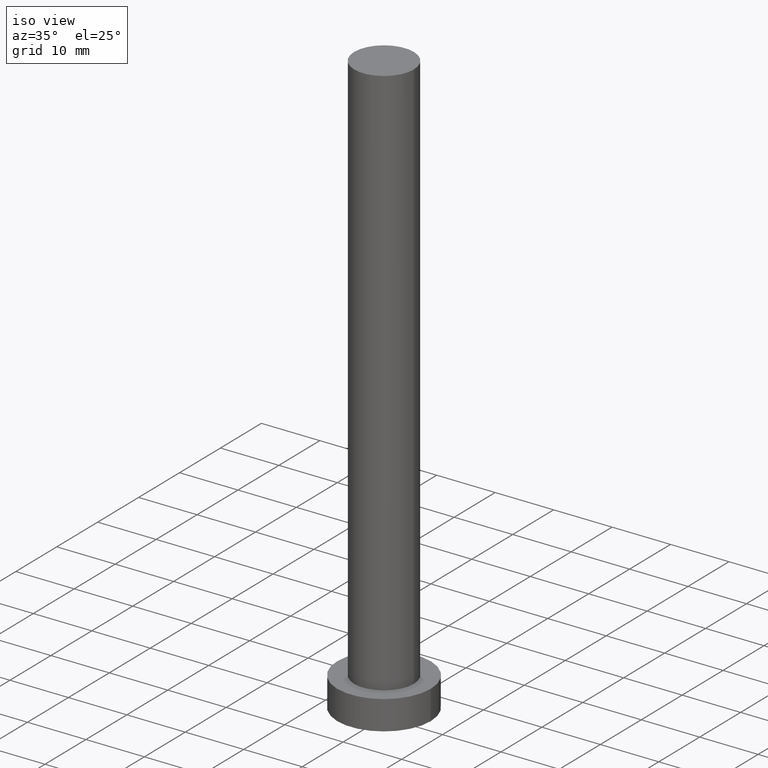
[diagram: clean part render]
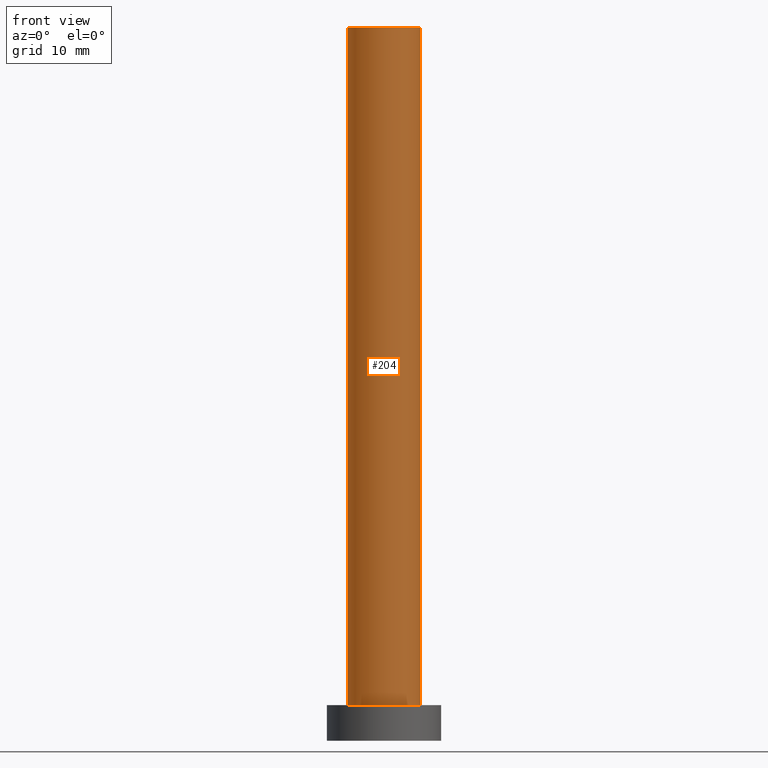
[diagram: tour spotlight — one face highlighted and labeled with its STEP entity id]
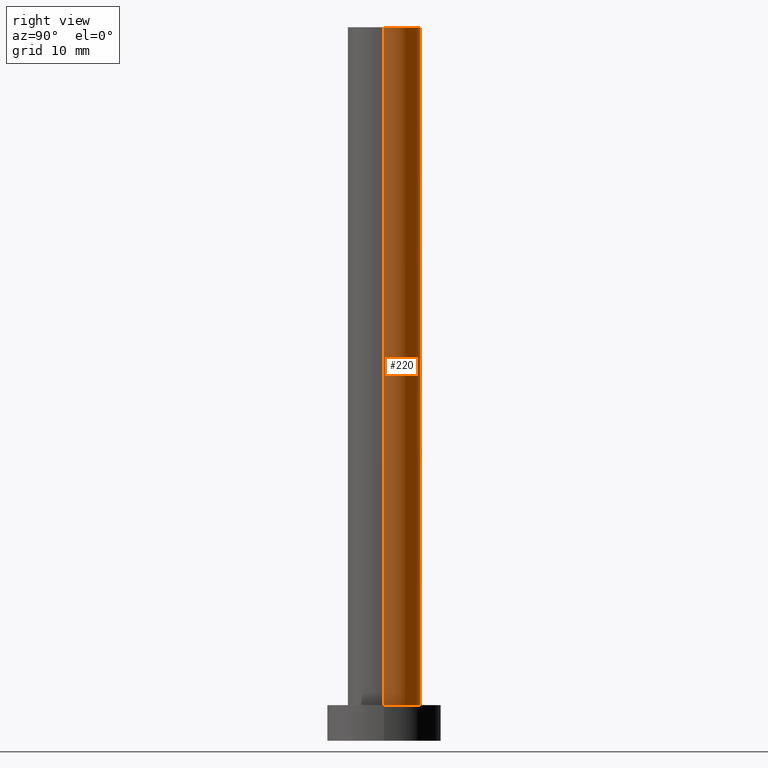
[diagram: tour spotlight — one face highlighted and labeled with its STEP entity id]
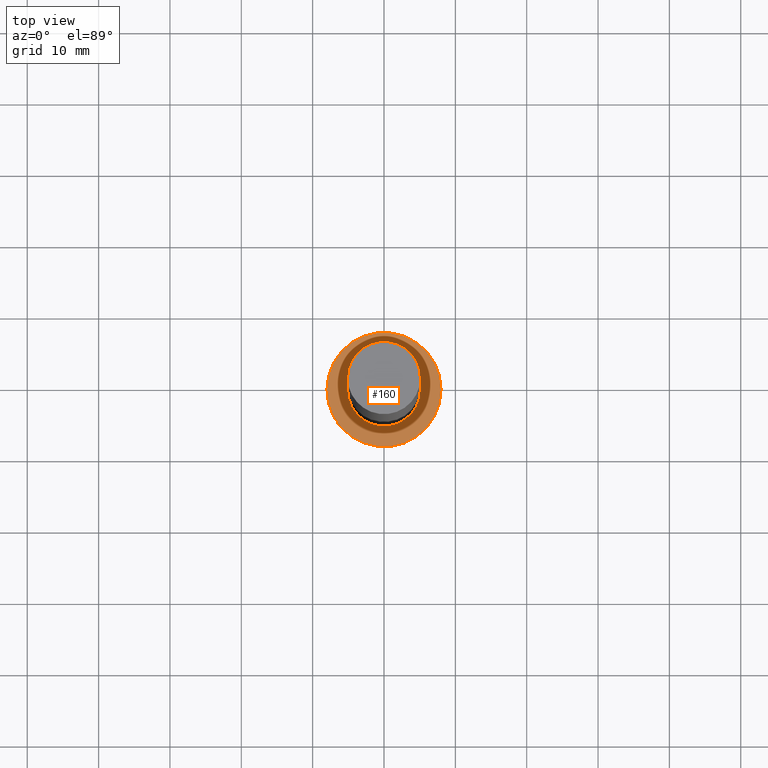
[diagram: tour spotlight — one face highlighted and labeled with its STEP entity id]
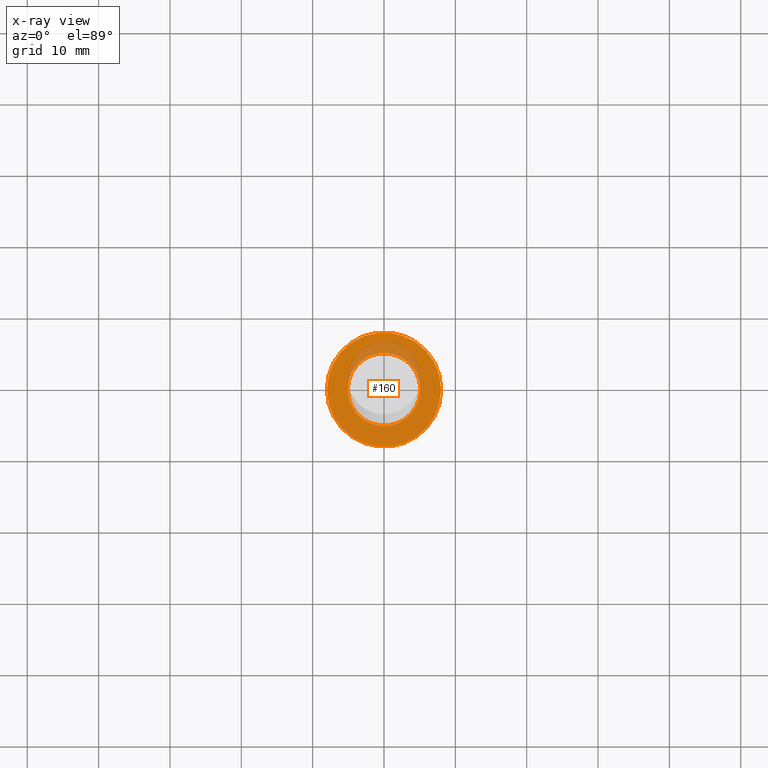
[diagram: x-ray of the same camera — body ghosted, this tour face saturated]
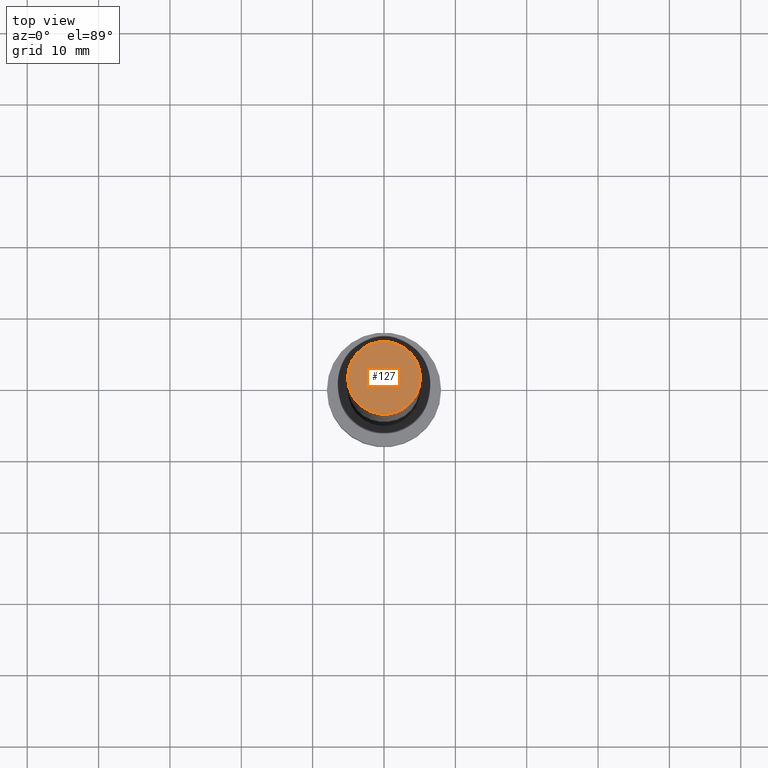
[diagram: tour spotlight — one face highlighted and labeled with its STEP entity id]
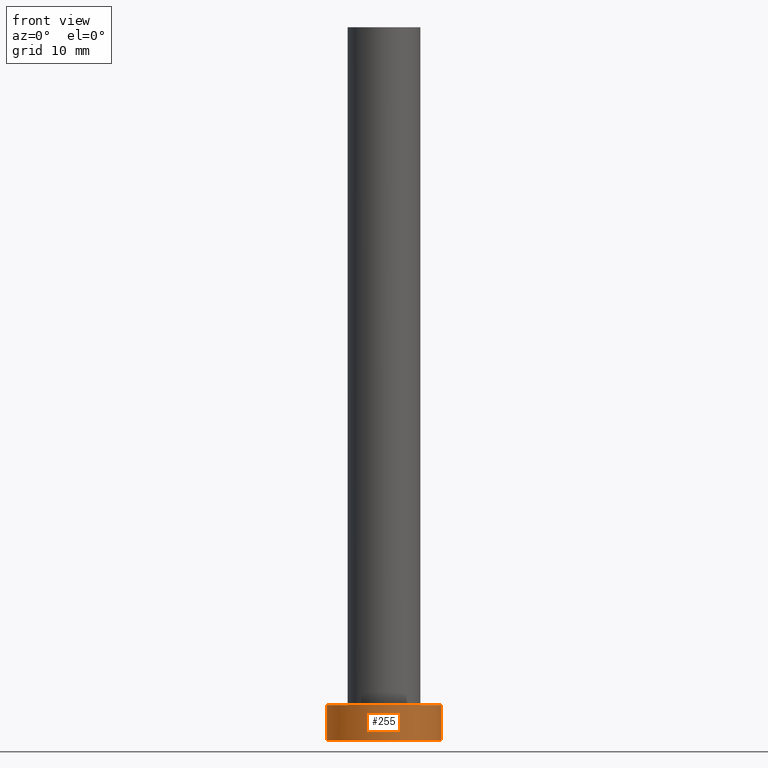
[diagram: tour spotlight — one face highlighted and labeled with its STEP entity id]
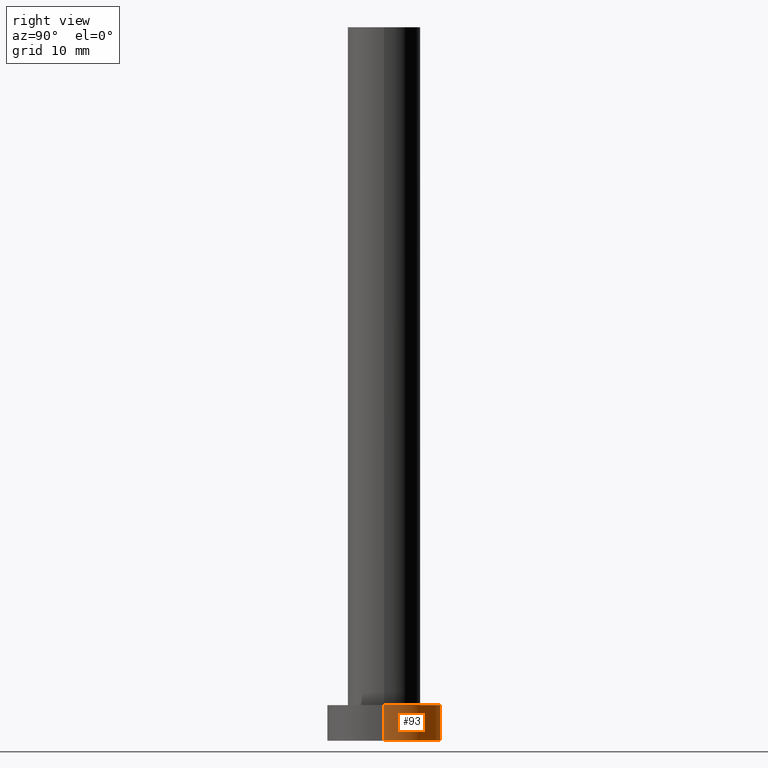
[diagram: tour spotlight — one face highlighted and labeled with its STEP entity id]
A machine part: a face-by-face anatomy tour. The part has 7 B-rep faces; the first image is the clean iso view, then the 6 largest visible faces are spotlighted one at a time (largest first), each with its STEP entity span.

Face 1 — front view, entity #204. In plain terms, the highlighted cylindrical surface (edge-blend (fillet) strip) has radius 5.1 mm, axis along (-0, -0, -1).
Definition (entity closure, byte-faithful):
#9 = DIRECTION ( 'NONE',  ( 0.000000000000000000, 0.000000000000000000, 1.000000000000000000 ) ) ;
#16 = LINE ( 'NONE', #183, #117 ) ;
#19 = CARTESIAN_POINT ( 'NONE',  ( 0.000000000000000000, 0.000000000000000000, 100.0000000000000000 ) ) ;
#26 = EDGE_CURVE ( 'NONE', #215, #99, #16, .T. ) ;
#41 = CYLINDRICAL_SURFACE ( 'NONE', #170, 5.100000000000001421 ) ;
#43 = DIRECTION ( 'NONE',  ( -1.000000000000000000, 0.000000000000000000, 0.000000000000000000 ) ) ;
#48 = EDGE_CURVE ( 'NONE', #215, #217, #191, .T. ) ;
#56 = ORIENTED_EDGE ( 'NONE', *, *, #26, .T. ) ;
#70 = EDGE_CURVE ( 'NONE', #217, #218, #225, .T. ) ;
#85 = DIRECTION ( 'NONE',  ( 1.000000000000000000, 0.000000000000000000, 0.000000000000000000 ) ) ;
#87 = CARTESIAN_POINT ( 'NONE',  ( -5.100000000000001421, 0.000000000000000000, 100.0000000000000000 ) ) ;
#90 = DIRECTION ( 'NONE',  ( 0.000000000000000000, 0.000000000000000000, 1.000000000000000000 ) ) ;
#97 = CARTESIAN_POINT ( 'NONE',  ( -5.100000000000001421, 0.000000000000000000, 5.000000000000000000 ) ) ;
#99 = VERTEX_POINT ( 'NONE', #97 ) ;
#102 = EDGE_LOOP ( 'NONE', ( #224, #141, #56, #244 ) ) ;
#107 = AXIS2_PLACEMENT_3D ( 'NONE', #137, #9, #116 ) ;
#114 = VECTOR ( 'NONE', #192, 1000.000000000000000 ) ;
#116 = DIRECTION ( 'NONE',  ( 1.000000000000000000, 0.000000000000000000, 0.000000000000000000 ) ) ;
#117 = VECTOR ( 'NONE', #250, 1000.000000000000000 ) ;
#128 = FACE_OUTER_BOUND ( 'NONE', #102, .T. ) ;
#131 = AXIS2_PLACEMENT_3D ( 'NONE', #237, #90, #85 ) ;
#137 = CARTESIAN_POINT ( 'NONE',  ( 0.000000000000000000, 0.000000000000000000, 100.0000000000000000 ) ) ;
#141 = ORIENTED_EDGE ( 'NONE', *, *, #48, .F. ) ;
#151 = CARTESIAN_POINT ( 'NONE',  ( 5.100000000000001421, 6.245698675651502811E-16, 5.000000000000000000 ) ) ;
#168 = CARTESIAN_POINT ( 'NONE',  ( 5.100000000000001421, 6.245698675651502811E-16, 100.0000000000000000 ) ) ;
#170 = AXIS2_PLACEMENT_3D ( 'NONE', #19, #221, #43 ) ;
#183 = CARTESIAN_POINT ( 'NONE',  ( -5.100000000000001421, 0.000000000000000000, 100.0000000000000000 ) ) ;
#187 = EDGE_CURVE ( 'NONE', #99, #218, #253, .T. ) ;
#191 = CIRCLE ( 'NONE', #107, 5.100000000000001421 ) ;
#192 = DIRECTION ( 'NONE',  ( -0.000000000000000000, -0.000000000000000000, -1.000000000000000000 ) ) ;
#204 = ADVANCED_FACE ( 'NONE', ( #128 ), #41, .T. ) ;
#210 = CARTESIAN_POINT ( 'NONE',  ( 5.100000000000001421, 6.245698675651502811E-16, 100.0000000000000000 ) ) ;
#215 = VERTEX_POINT ( 'NONE', #87 ) ;
#217 = VERTEX_POINT ( 'NONE', #168 ) ;
#218 = VERTEX_POINT ( 'NONE', #151 ) ;
#221 = DIRECTION ( 'NONE',  ( -0.000000000000000000, -0.000000000000000000, -1.000000000000000000 ) ) ;
#224 = ORIENTED_EDGE ( 'NONE', *, *, #70, .F. ) ;
#225 = LINE ( 'NONE', #210, #114 ) ;
#237 = CARTESIAN_POINT ( 'NONE',  ( 0.000000000000000000, 0.000000000000000000, 5.000000000000000000 ) ) ;
#244 = ORIENTED_EDGE ( 'NONE', *, *, #187, .T. ) ;
#250 = DIRECTION ( 'NONE',  ( -0.000000000000000000, -0.000000000000000000, -1.000000000000000000 ) ) ;
#253 = CIRCLE ( 'NONE', #131, 5.100000000000001421 ) ;

Face 2 — right view, entity #220. In plain terms, the highlighted cylindrical surface (edge-blend (fillet) strip) has radius 5.1 mm, axis along (-0, -0, -1).
Definition (entity closure, byte-faithful):
#1 = DIRECTION ( 'NONE',  ( 1.000000000000000000, 0.000000000000000000, 0.000000000000000000 ) ) ;
#2 = DIRECTION ( 'NONE',  ( -0.000000000000000000, -0.000000000000000000, -1.000000000000000000 ) ) ;
#13 = AXIS2_PLACEMENT_3D ( 'NONE', #22, #65, #1 ) ;
#16 = LINE ( 'NONE', #183, #117 ) ;
#22 = CARTESIAN_POINT ( 'NONE',  ( 0.000000000000000000, 0.000000000000000000, 5.000000000000000000 ) ) ;
#23 = CYLINDRICAL_SURFACE ( 'NONE', #29, 5.100000000000001421 ) ;
#25 = DIRECTION ( 'NONE',  ( -1.000000000000000000, 0.000000000000000000, 0.000000000000000000 ) ) ;
#26 = EDGE_CURVE ( 'NONE', #215, #99, #16, .T. ) ;
#27 = EDGE_CURVE ( 'NONE', #217, #215, #63, .T. ) ;
#29 = AXIS2_PLACEMENT_3D ( 'NONE', #111, #2, #25 ) ;
#30 = ORIENTED_EDGE ( 'NONE', *, *, #26, .F. ) ;
#37 = ORIENTED_EDGE ( 'NONE', *, *, #213, .T. ) ;
#51 = DIRECTION ( 'NONE',  ( 1.000000000000000000, 0.000000000000000000, 0.000000000000000000 ) ) ;
#63 = CIRCLE ( 'NONE', #206, 5.100000000000001421 ) ;
#65 = DIRECTION ( 'NONE',  ( 0.000000000000000000, 0.000000000000000000, 1.000000000000000000 ) ) ;
#70 = EDGE_CURVE ( 'NONE', #217, #218, #225, .T. ) ;
#83 = ORIENTED_EDGE ( 'NONE', *, *, #27, .F. ) ;
#87 = CARTESIAN_POINT ( 'NONE',  ( -5.100000000000001421, 0.000000000000000000, 100.0000000000000000 ) ) ;
#97 = CARTESIAN_POINT ( 'NONE',  ( -5.100000000000001421, 0.000000000000000000, 5.000000000000000000 ) ) ;
#99 = VERTEX_POINT ( 'NONE', #97 ) ;
#111 = CARTESIAN_POINT ( 'NONE',  ( 0.000000000000000000, 0.000000000000000000, 100.0000000000000000 ) ) ;
#114 = VECTOR ( 'NONE', #192, 1000.000000000000000 ) ;
#117 = VECTOR ( 'NONE', #250, 1000.000000000000000 ) ;
#150 = CIRCLE ( 'NONE', #13, 5.100000000000001421 ) ;
#151 = CARTESIAN_POINT ( 'NONE',  ( 5.100000000000001421, 6.245698675651502811E-16, 5.000000000000000000 ) ) ;
#162 = ORIENTED_EDGE ( 'NONE', *, *, #70, .T. ) ;
#163 = CARTESIAN_POINT ( 'NONE',  ( 0.000000000000000000, 0.000000000000000000, 100.0000000000000000 ) ) ;
#168 = CARTESIAN_POINT ( 'NONE',  ( 5.100000000000001421, 6.245698675651502811E-16, 100.0000000000000000 ) ) ;
#183 = CARTESIAN_POINT ( 'NONE',  ( -5.100000000000001421, 0.000000000000000000, 100.0000000000000000 ) ) ;
#192 = DIRECTION ( 'NONE',  ( -0.000000000000000000, -0.000000000000000000, -1.000000000000000000 ) ) ;
#205 = FACE_OUTER_BOUND ( 'NONE', #231, .T. ) ;
#206 = AXIS2_PLACEMENT_3D ( 'NONE', #163, #233, #51 ) ;
#210 = CARTESIAN_POINT ( 'NONE',  ( 5.100000000000001421, 6.245698675651502811E-16, 100.0000000000000000 ) ) ;
#213 = EDGE_CURVE ( 'NONE', #218, #99, #150, .T. ) ;
#215 = VERTEX_POINT ( 'NONE', #87 ) ;
#217 = VERTEX_POINT ( 'NONE', #168 ) ;
#218 = VERTEX_POINT ( 'NONE', #151 ) ;
#220 = ADVANCED_FACE ( 'NONE', ( #205 ), #23, .T. ) ;
#225 = LINE ( 'NONE', #210, #114 ) ;
#231 = EDGE_LOOP ( 'NONE', ( #83, #162, #37, #30 ) ) ;
#233 = DIRECTION ( 'NONE',  ( 0.000000000000000000, 0.000000000000000000, 1.000000000000000000 ) ) ;
#250 = DIRECTION ( 'NONE',  ( -0.000000000000000000, -0.000000000000000000, -1.000000000000000000 ) ) ;

Face 3 — top view, entity #160. An x-ray twin of the same camera follows (body ghosted, this face saturated) — the face is partly hidden behind the body. In plain terms, the highlighted planar face has unit normal (0, 0, 1).
Definition (entity closure, byte-faithful):
#1 = DIRECTION ( 'NONE',  ( 1.000000000000000000, 0.000000000000000000, 0.000000000000000000 ) ) ;
#11 = ORIENTED_EDGE ( 'NONE', *, *, #139, .T. ) ;
#12 = FACE_OUTER_BOUND ( 'NONE', #212, .T. ) ;
#13 = AXIS2_PLACEMENT_3D ( 'NONE', #22, #65, #1 ) ;
#22 = CARTESIAN_POINT ( 'NONE',  ( 0.000000000000000000, 0.000000000000000000, 5.000000000000000000 ) ) ;
#32 = EDGE_LOOP ( 'NONE', ( #185, #144 ) ) ;
#33 = DIRECTION ( 'NONE',  ( 0.000000000000000000, 0.000000000000000000, 1.000000000000000000 ) ) ;
#53 = EDGE_CURVE ( 'NONE', #178, #76, #79, .T. ) ;
#65 = DIRECTION ( 'NONE',  ( 0.000000000000000000, 0.000000000000000000, 1.000000000000000000 ) ) ;
#76 = VERTEX_POINT ( 'NONE', #172 ) ;
#77 = DIRECTION ( 'NONE',  ( 0.000000000000000000, 0.000000000000000000, 1.000000000000000000 ) ) ;
#79 = CIRCLE ( 'NONE', #91, 8.000000000000000000 ) ;
#84 = CARTESIAN_POINT ( 'NONE',  ( 0.000000000000000000, 0.000000000000000000, 5.000000000000000000 ) ) ;
#85 = DIRECTION ( 'NONE',  ( 1.000000000000000000, 0.000000000000000000, 0.000000000000000000 ) ) ;
#90 = DIRECTION ( 'NONE',  ( 0.000000000000000000, 0.000000000000000000, 1.000000000000000000 ) ) ;
#91 = AXIS2_PLACEMENT_3D ( 'NONE', #100, #95, #155 ) ;
#95 = DIRECTION ( 'NONE',  ( 0.000000000000000000, 0.000000000000000000, 1.000000000000000000 ) ) ;
#97 = CARTESIAN_POINT ( 'NONE',  ( -5.100000000000001421, 0.000000000000000000, 5.000000000000000000 ) ) ;
#99 = VERTEX_POINT ( 'NONE', #97 ) ;
#100 = CARTESIAN_POINT ( 'NONE',  ( 0.000000000000000000, 0.000000000000000000, 5.000000000000000000 ) ) ;
#103 = PLANE ( 'NONE',  #232 ) ;
#108 = ORIENTED_EDGE ( 'NONE', *, *, #53, .T. ) ;
#110 = FACE_BOUND ( 'NONE', #32, .T. ) ;
#131 = AXIS2_PLACEMENT_3D ( 'NONE', #237, #90, #85 ) ;
#139 = EDGE_CURVE ( 'NONE', #76, #178, #156, .T. ) ;
#144 = ORIENTED_EDGE ( 'NONE', *, *, #213, .F. ) ;
#148 = DIRECTION ( 'NONE',  ( 1.000000000000000000, 0.000000000000000000, -0.000000000000000000 ) ) ;
#150 = CIRCLE ( 'NONE', #13, 5.100000000000001421 ) ;
#151 = CARTESIAN_POINT ( 'NONE',  ( 5.100000000000001421, 6.245698675651502811E-16, 5.000000000000000000 ) ) ;
#155 = DIRECTION ( 'NONE',  ( 1.000000000000000000, 0.000000000000000000, 0.000000000000000000 ) ) ;
#156 = CIRCLE ( 'NONE', #245, 8.000000000000000000 ) ;
#160 = ADVANCED_FACE ( 'NONE', ( #110, #12 ), #103, .T. ) ;
#172 = CARTESIAN_POINT ( 'NONE',  ( 8.000000000000000000, 9.797174393178825657E-16, 5.000000000000000000 ) ) ;
#178 = VERTEX_POINT ( 'NONE', #203 ) ;
#185 = ORIENTED_EDGE ( 'NONE', *, *, #187, .F. ) ;
#187 = EDGE_CURVE ( 'NONE', #99, #218, #253, .T. ) ;
#203 = CARTESIAN_POINT ( 'NONE',  ( -8.000000000000000000, 0.000000000000000000, 5.000000000000000000 ) ) ;
#212 = EDGE_LOOP ( 'NONE', ( #108, #11 ) ) ;
#213 = EDGE_CURVE ( 'NONE', #218, #99, #150, .T. ) ;
#218 = VERTEX_POINT ( 'NONE', #151 ) ;
#232 = AXIS2_PLACEMENT_3D ( 'NONE', #236, #33, #148 ) ;
#236 = CARTESIAN_POINT ( 'NONE',  ( 0.000000000000000000, 0.000000000000000000, 5.000000000000000000 ) ) ;
#237 = CARTESIAN_POINT ( 'NONE',  ( 0.000000000000000000, 0.000000000000000000, 5.000000000000000000 ) ) ;
#245 = AXIS2_PLACEMENT_3D ( 'NONE', #84, #77, #251 ) ;
#251 = DIRECTION ( 'NONE',  ( 1.000000000000000000, 0.000000000000000000, 0.000000000000000000 ) ) ;
#253 = CIRCLE ( 'NONE', #131, 5.100000000000001421 ) ;

Face 4 — top view, entity #127. In plain terms, the highlighted planar face has unit normal (0, 0, 1).
Definition (entity closure, byte-faithful):
#3 = AXIS2_PLACEMENT_3D ( 'NONE', #49, #132, #120 ) ;
#9 = DIRECTION ( 'NONE',  ( 0.000000000000000000, 0.000000000000000000, 1.000000000000000000 ) ) ;
#15 = ORIENTED_EDGE ( 'NONE', *, *, #48, .T. ) ;
#27 = EDGE_CURVE ( 'NONE', #217, #215, #63, .T. ) ;
#28 = PLANE ( 'NONE',  #3 ) ;
#48 = EDGE_CURVE ( 'NONE', #215, #217, #191, .T. ) ;
#49 = CARTESIAN_POINT ( 'NONE',  ( 0.000000000000000000, 0.000000000000000000, 100.0000000000000000 ) ) ;
#51 = DIRECTION ( 'NONE',  ( 1.000000000000000000, 0.000000000000000000, 0.000000000000000000 ) ) ;
#63 = CIRCLE ( 'NONE', #206, 5.100000000000001421 ) ;
#87 = CARTESIAN_POINT ( 'NONE',  ( -5.100000000000001421, 0.000000000000000000, 100.0000000000000000 ) ) ;
#107 = AXIS2_PLACEMENT_3D ( 'NONE', #137, #9, #116 ) ;
#116 = DIRECTION ( 'NONE',  ( 1.000000000000000000, 0.000000000000000000, 0.000000000000000000 ) ) ;
#120 = DIRECTION ( 'NONE',  ( 1.000000000000000000, 0.000000000000000000, -0.000000000000000000 ) ) ;
#127 = ADVANCED_FACE ( 'NONE', ( #154 ), #28, .T. ) ;
#132 = DIRECTION ( 'NONE',  ( 0.000000000000000000, 0.000000000000000000, 1.000000000000000000 ) ) ;
#137 = CARTESIAN_POINT ( 'NONE',  ( 0.000000000000000000, 0.000000000000000000, 100.0000000000000000 ) ) ;
#154 = FACE_OUTER_BOUND ( 'NONE', #254, .T. ) ;
#159 = ORIENTED_EDGE ( 'NONE', *, *, #27, .T. ) ;
#163 = CARTESIAN_POINT ( 'NONE',  ( 0.000000000000000000, 0.000000000000000000, 100.0000000000000000 ) ) ;
#168 = CARTESIAN_POINT ( 'NONE',  ( 5.100000000000001421, 6.245698675651502811E-16, 100.0000000000000000 ) ) ;
#191 = CIRCLE ( 'NONE', #107, 5.100000000000001421 ) ;
#206 = AXIS2_PLACEMENT_3D ( 'NONE', #163, #233, #51 ) ;
#215 = VERTEX_POINT ( 'NONE', #87 ) ;
#217 = VERTEX_POINT ( 'NONE', #168 ) ;
#233 = DIRECTION ( 'NONE',  ( 0.000000000000000000, 0.000000000000000000, 1.000000000000000000 ) ) ;
#254 = EDGE_LOOP ( 'NONE', ( #15, #159 ) ) ;

Face 5 — front view, entity #255. In plain terms, the highlighted cylindrical surface (partial cylindrical patch) has radius 8 mm, axis along (-0, -0, -1).
Definition (entity closure, byte-faithful):
#4 = EDGE_CURVE ( 'NONE', #76, #124, #122, .T. ) ;
#34 = EDGE_CURVE ( 'NONE', #104, #124, #101, .T. ) ;
#44 = DIRECTION ( 'NONE',  ( -1.000000000000000000, 0.000000000000000000, 0.000000000000000000 ) ) ;
#47 = CARTESIAN_POINT ( 'NONE',  ( -8.000000000000000000, 0.000000000000000000, 5.000000000000000000 ) ) ;
#50 = LINE ( 'NONE', #47, #239 ) ;
#53 = EDGE_CURVE ( 'NONE', #178, #76, #79, .T. ) ;
#58 = ORIENTED_EDGE ( 'NONE', *, *, #53, .F. ) ;
#67 = CARTESIAN_POINT ( 'NONE',  ( 8.000000000000000000, 9.797174393178825657E-16, 0.000000000000000000 ) ) ;
#71 = DIRECTION ( 'NONE',  ( 0.000000000000000000, 0.000000000000000000, 1.000000000000000000 ) ) ;
#76 = VERTEX_POINT ( 'NONE', #172 ) ;
#79 = CIRCLE ( 'NONE', #91, 8.000000000000000000 ) ;
#86 = VECTOR ( 'NONE', #198, 1000.000000000000000 ) ;
#88 = CYLINDRICAL_SURFACE ( 'NONE', #126, 8.000000000000000000 ) ;
#91 = AXIS2_PLACEMENT_3D ( 'NONE', #100, #95, #155 ) ;
#95 = DIRECTION ( 'NONE',  ( 0.000000000000000000, 0.000000000000000000, 1.000000000000000000 ) ) ;
#100 = CARTESIAN_POINT ( 'NONE',  ( 0.000000000000000000, 0.000000000000000000, 5.000000000000000000 ) ) ;
#101 = CIRCLE ( 'NONE', #188, 8.000000000000000000 ) ;
#104 = VERTEX_POINT ( 'NONE', #152 ) ;
#109 = DIRECTION ( 'NONE',  ( -0.000000000000000000, -0.000000000000000000, -1.000000000000000000 ) ) ;
#112 = EDGE_CURVE ( 'NONE', #178, #104, #50, .T. ) ;
#115 = CARTESIAN_POINT ( 'NONE',  ( 0.000000000000000000, 0.000000000000000000, 0.000000000000000000 ) ) ;
#122 = LINE ( 'NONE', #228, #86 ) ;
#124 = VERTEX_POINT ( 'NONE', #67 ) ;
#126 = AXIS2_PLACEMENT_3D ( 'NONE', #149, #109, #44 ) ;
#129 = FACE_OUTER_BOUND ( 'NONE', #190, .T. ) ;
#149 = CARTESIAN_POINT ( 'NONE',  ( 0.000000000000000000, 0.000000000000000000, 5.000000000000000000 ) ) ;
#152 = CARTESIAN_POINT ( 'NONE',  ( -8.000000000000000000, 0.000000000000000000, 0.000000000000000000 ) ) ;
#155 = DIRECTION ( 'NONE',  ( 1.000000000000000000, 0.000000000000000000, 0.000000000000000000 ) ) ;
#165 = DIRECTION ( 'NONE',  ( 1.000000000000000000, 0.000000000000000000, 0.000000000000000000 ) ) ;
#172 = CARTESIAN_POINT ( 'NONE',  ( 8.000000000000000000, 9.797174393178825657E-16, 5.000000000000000000 ) ) ;
#178 = VERTEX_POINT ( 'NONE', #203 ) ;
#182 = ORIENTED_EDGE ( 'NONE', *, *, #112, .T. ) ;
#188 = AXIS2_PLACEMENT_3D ( 'NONE', #115, #71, #165 ) ;
#190 = EDGE_LOOP ( 'NONE', ( #208, #58, #182, #200 ) ) ;
#198 = DIRECTION ( 'NONE',  ( -0.000000000000000000, -0.000000000000000000, -1.000000000000000000 ) ) ;
#200 = ORIENTED_EDGE ( 'NONE', *, *, #34, .T. ) ;
#203 = CARTESIAN_POINT ( 'NONE',  ( -8.000000000000000000, 0.000000000000000000, 5.000000000000000000 ) ) ;
#208 = ORIENTED_EDGE ( 'NONE', *, *, #4, .F. ) ;
#228 = CARTESIAN_POINT ( 'NONE',  ( 8.000000000000000000, 9.797174393178825657E-16, 5.000000000000000000 ) ) ;
#239 = VECTOR ( 'NONE', #242, 1000.000000000000000 ) ;
#242 = DIRECTION ( 'NONE',  ( -0.000000000000000000, -0.000000000000000000, -1.000000000000000000 ) ) ;
#255 = ADVANCED_FACE ( 'NONE', ( #129 ), #88, .T. ) ;

Face 6 — right view, entity #93. In plain terms, the highlighted cylindrical surface (partial cylindrical patch) has radius 8 mm, axis along (-0, -0, -1).
Definition (entity closure, byte-faithful):
#4 = EDGE_CURVE ( 'NONE', #76, #124, #122, .T. ) ;
#5 = AXIS2_PLACEMENT_3D ( 'NONE', #81, #219, #125 ) ;
#18 = ORIENTED_EDGE ( 'NONE', *, *, #147, .T. ) ;
#39 = ORIENTED_EDGE ( 'NONE', *, *, #139, .F. ) ;
#47 = CARTESIAN_POINT ( 'NONE',  ( -8.000000000000000000, 0.000000000000000000, 5.000000000000000000 ) ) ;
#50 = LINE ( 'NONE', #47, #239 ) ;
#67 = CARTESIAN_POINT ( 'NONE',  ( 8.000000000000000000, 9.797174393178825657E-16, 0.000000000000000000 ) ) ;
#68 = CYLINDRICAL_SURFACE ( 'NONE', #135, 8.000000000000000000 ) ;
#74 = ORIENTED_EDGE ( 'NONE', *, *, #4, .T. ) ;
#76 = VERTEX_POINT ( 'NONE', #172 ) ;
#77 = DIRECTION ( 'NONE',  ( 0.000000000000000000, 0.000000000000000000, 1.000000000000000000 ) ) ;
#80 = ORIENTED_EDGE ( 'NONE', *, *, #112, .F. ) ;
#81 = CARTESIAN_POINT ( 'NONE',  ( 0.000000000000000000, 0.000000000000000000, 0.000000000000000000 ) ) ;
#84 = CARTESIAN_POINT ( 'NONE',  ( 0.000000000000000000, 0.000000000000000000, 5.000000000000000000 ) ) ;
#86 = VECTOR ( 'NONE', #198, 1000.000000000000000 ) ;
#93 = ADVANCED_FACE ( 'NONE', ( #175 ), #68, .T. ) ;
#94 = EDGE_LOOP ( 'NONE', ( #39, #74, #18, #80 ) ) ;
#104 = VERTEX_POINT ( 'NONE', #152 ) ;
#112 = EDGE_CURVE ( 'NONE', #178, #104, #50, .T. ) ;
#122 = LINE ( 'NONE', #228, #86 ) ;
#124 = VERTEX_POINT ( 'NONE', #67 ) ;
#125 = DIRECTION ( 'NONE',  ( 1.000000000000000000, 0.000000000000000000, 0.000000000000000000 ) ) ;
#135 = AXIS2_PLACEMENT_3D ( 'NONE', #241, #229, #174 ) ;
#139 = EDGE_CURVE ( 'NONE', #76, #178, #156, .T. ) ;
#145 = CIRCLE ( 'NONE', #5, 8.000000000000000000 ) ;
#147 = EDGE_CURVE ( 'NONE', #124, #104, #145, .T. ) ;
#152 = CARTESIAN_POINT ( 'NONE',  ( -8.000000000000000000, 0.000000000000000000, 0.000000000000000000 ) ) ;
#156 = CIRCLE ( 'NONE', #245, 8.000000000000000000 ) ;
#172 = CARTESIAN_POINT ( 'NONE',  ( 8.000000000000000000, 9.797174393178825657E-16, 5.000000000000000000 ) ) ;
#174 = DIRECTION ( 'NONE',  ( -1.000000000000000000, 0.000000000000000000, 0.000000000000000000 ) ) ;
#175 = FACE_OUTER_BOUND ( 'NONE', #94, .T. ) ;
#178 = VERTEX_POINT ( 'NONE', #203 ) ;
#198 = DIRECTION ( 'NONE',  ( -0.000000000000000000, -0.000000000000000000, -1.000000000000000000 ) ) ;
#203 = CARTESIAN_POINT ( 'NONE',  ( -8.000000000000000000, 0.000000000000000000, 5.000000000000000000 ) ) ;
#219 = DIRECTION ( 'NONE',  ( 0.000000000000000000, 0.000000000000000000, 1.000000000000000000 ) ) ;
#228 = CARTESIAN_POINT ( 'NONE',  ( 8.000000000000000000, 9.797174393178825657E-16, 5.000000000000000000 ) ) ;
#229 = DIRECTION ( 'NONE',  ( -0.000000000000000000, -0.000000000000000000, -1.000000000000000000 ) ) ;
#239 = VECTOR ( 'NONE', #242, 1000.000000000000000 ) ;
#241 = CARTESIAN_POINT ( 'NONE',  ( 0.000000000000000000, 0.000000000000000000, 5.000000000000000000 ) ) ;
#242 = DIRECTION ( 'NONE',  ( -0.000000000000000000, -0.000000000000000000, -1.000000000000000000 ) ) ;
#245 = AXIS2_PLACEMENT_3D ( 'NONE', #84, #77, #251 ) ;
#251 = DIRECTION ( 'NONE',  ( 1.000000000000000000, 0.000000000000000000, 0.000000000000000000 ) ) ;